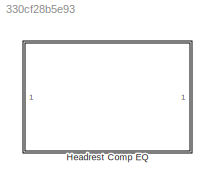
MODEL slx_330cf28b5e93
KIND library
CONFIG AbsTol = auto
CONFIG EnableMultiTasking = off
CONFIG FixedStep = auto
CONFIG MaxStep = auto
CONFIG MinStep = auto
CONFIG RelTol = 1e-3
CONFIG SampleTimeConstraint = Unconstrained
CONFIG SolverName = VariableStepAuto
CONFIG StartTime = 0.0
CONFIG StopTime = 10.0
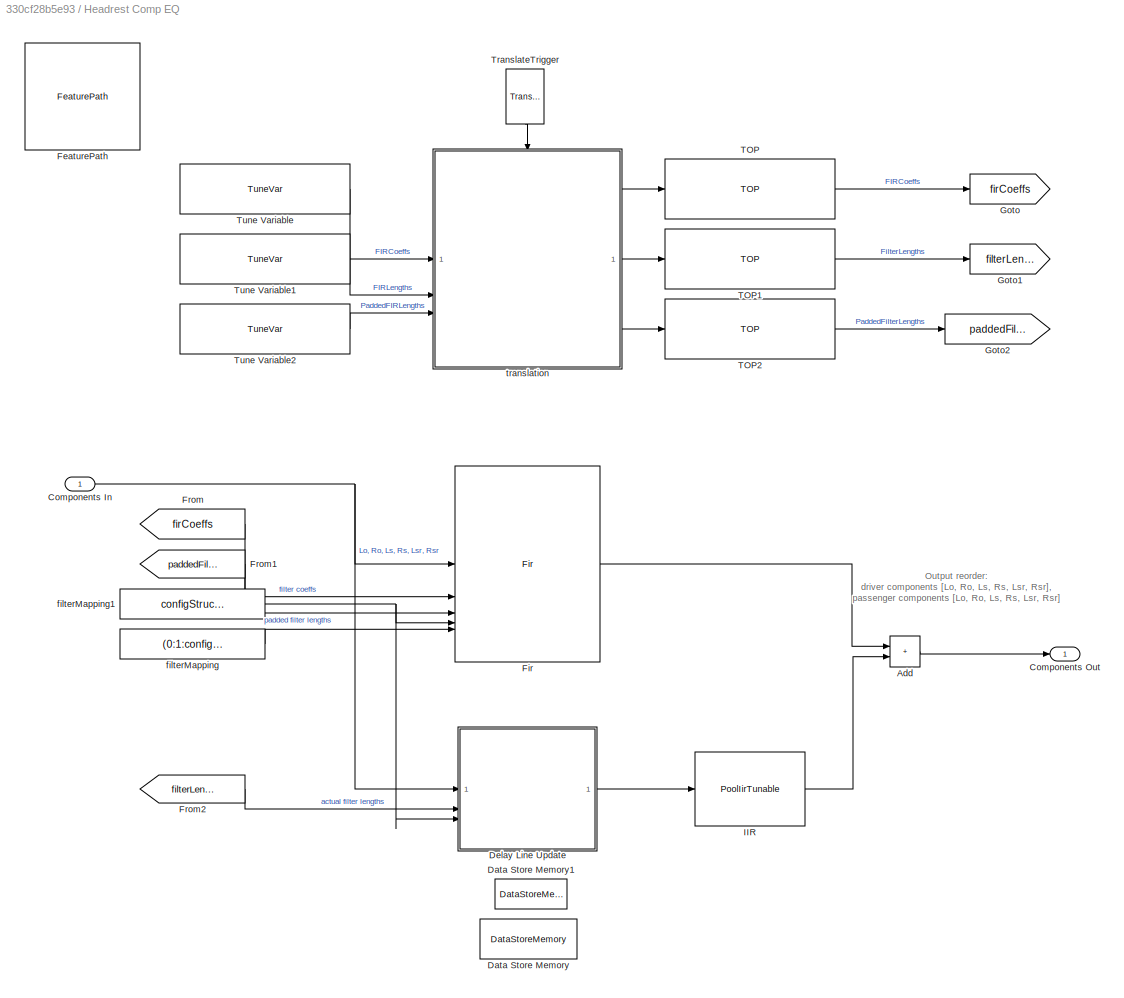
BLOCK [SubSystem] Headrest Comp EQ
BLOCK [Sum] Headrest Comp EQ/Add
  IconShape = rectangular
  Priority = 2
BLOCK [Inport] Headrest Comp EQ/Components In
BLOCK [Outport] Headrest Comp EQ/Components Out
  VectorParamsAs1DForOutWhenUnconnected = off
BLOCK [DataStoreMemory] Headrest Comp EQ/Data Store Memory
  DataStoreName = states
  InitialValue = zeros(fixedDelayLength, numInput)
  OutDataTypeStr = single
  ReadBeforeWriteMsg = warning
  ShowAdditionalParam = off
  SignalType = real
  WriteAfterReadMsg = warning
  WriteAfterWriteMsg = warning
BLOCK [DataStoreMemory] Headrest Comp EQ/Data Store Memory1
  DataStoreName = stateIndex
  OutDataTypeStr = int32
  ReadBeforeWriteMsg = warning
  ShowAdditionalParam = off
  SignalType = real
  WriteAfterReadMsg = warning
  WriteAfterWriteMsg = warning
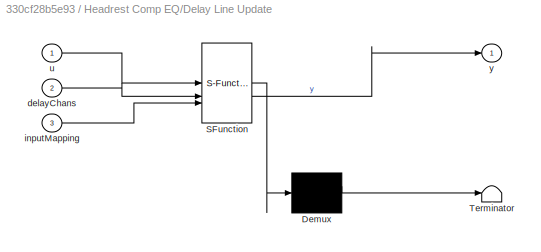
BLOCK [SubSystem] Headrest Comp EQ/Delay Line Update
  ErrorFcn = Stateflow.Translate.translate
  PermitHierarchicalResolution = ExplicitOnly
  SFBlockType = MATLAB Function
  TreatAsAtomicUnit = on
BLOCK [Demux] Headrest Comp EQ/Delay Line Update/ Demux 
  Outputs = 1
BLOCK [S-Function] Headrest Comp EQ/Delay Line Update/ SFunction 
  EnableBusSupport = off
  FunctionName = sf_sfun
  Parameters = fixedDelayLength
  PortCounts = [3 2]
  SFcnIsStateOwnerBlock = off
  SFunctionDeploymentMode = off
  Tag = Stateflow S-Function 2
BLOCK [Terminator] Headrest Comp EQ/Delay Line Update/ Terminator 
BLOCK [Inport] Headrest Comp EQ/Delay Line Update/delayChans
  Port = 2
BLOCK [Inport] Headrest Comp EQ/Delay Line Update/inputMapping
  Port = 3
BLOCK [Inport] Headrest Comp EQ/Delay Line Update/u
BLOCK [Outport] Headrest Comp EQ/Delay Line Update/y
  VectorParamsAs1DForOutWhenUnconnected = off
BLOCK [Reference] Headrest Comp EQ/FeaturePath  REF=FeaturePath/FeaturePath
  SourceBlock = FeaturePath/FeaturePath
  SourceProductName = Bose Talaria
  SourceType = Talaria Feature Path
BLOCK [Reference] Headrest Comp EQ/Fir  REF=FirGeneric/Fir
  SourceBlock = FirGeneric/Fir
  SourceProductName = Bose Blocklib
  SourceType = Blocklib Fir
BLOCK [From] Headrest Comp EQ/From
  GotoTag = firCoeffs
BLOCK [From] Headrest Comp EQ/From1
  GotoTag = paddedFilterLengths
BLOCK [From] Headrest Comp EQ/From2
  GotoTag = filterLengths
BLOCK [Goto] Headrest Comp EQ/Goto
  GotoTag = firCoeffs
BLOCK [Goto] Headrest Comp EQ/Goto1
  GotoTag = filterLengths
BLOCK [Goto] Headrest Comp EQ/Goto2
  GotoTag = paddedFilterLengths
BLOCK [Reference] Headrest Comp EQ/IIR  REF=PoolIir/PoolIirTunable
  SourceBlock = PoolIir/PoolIirTunable
  SourceType = Bose Pool IIR Tunable
BLOCK [Reference] Headrest Comp EQ/TOP  REF=TOP/TOP
  SourceBlock = TOP/TOP
  SourceProductName = Bose Talaria
  SourceType = Talaria Target Overlay Parameter
BLOCK [Reference] Headrest Comp EQ/TOP1  REF=TOP/TOP
  SourceBlock = TOP/TOP
  SourceProductName = Bose Talaria
  SourceType = Talaria Target Overlay Parameter
BLOCK [Reference] Headrest Comp EQ/TOP2  REF=TOP/TOP
  SourceBlock = TOP/TOP
  SourceProductName = Bose Talaria
  SourceType = Talaria Target Overlay Parameter
BLOCK [Reference] Headrest Comp EQ/TranslateTrigger  REF=TuneVar/TranslateTrigger
  NameLocation = left
  SourceBlock = TuneVar/TranslateTrigger
  SourceProductName = Bose Talaria
  SourceType = Talaria Translate Trigger
BLOCK [Reference] Headrest Comp EQ/Tune Variable  REF=TuneVar/TuneVar
  SourceBlock = TuneVar/TuneVar
  SourceProductName = Bose Talaria
  SourceType = Talaria Tune Variable
BLOCK [Reference] Headrest Comp EQ/Tune Variable1  REF=TuneVar/TuneVar
  SourceBlock = TuneVar/TuneVar
  SourceProductName = Bose Talaria
  SourceType = Talaria Tune Variable
BLOCK [Reference] Headrest Comp EQ/Tune Variable2  REF=TuneVar/TuneVar
  SourceBlock = TuneVar/TuneVar
  SourceProductName = Bose Talaria
  SourceType = Talaria Tune Variable
BLOCK [Constant] Headrest Comp EQ/filterMapping
  OutDataTypeStr = uint32
  Value = (0:1:configStruct.numEQlink-1)'
  VectorParams1D = off
BLOCK [Constant] Headrest Comp EQ/filterMapping1
  OutDataTypeStr = uint32
  Value = configStruct.inputMapping
  VectorParams1D = off
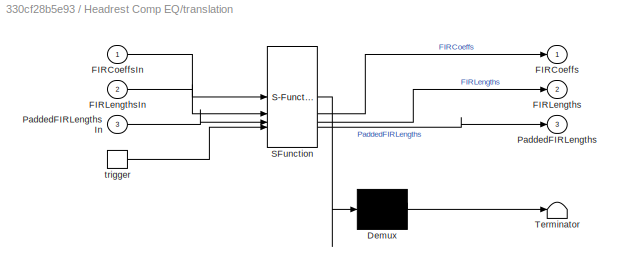
BLOCK [SubSystem] Headrest Comp EQ/translation
  ErrorFcn = Stateflow.Translate.translate
  PermitHierarchicalResolution = ExplicitOnly
  SFBlockType = MATLAB Function
  TreatAsAtomicUnit = on
BLOCK [Demux] Headrest Comp EQ/translation/ Demux 
  Outputs = 1
BLOCK [S-Function] Headrest Comp EQ/translation/ SFunction 
  EnableBusSupport = off
  FunctionName = sf_sfun
  PortCounts = [4 4]
  SFcnIsStateOwnerBlock = off
  SFunctionDeploymentMode = off
  Tag = Stateflow S-Function 8
BLOCK [Terminator] Headrest Comp EQ/translation/ Terminator 
BLOCK [Outport] Headrest Comp EQ/translation/FIRCoeffs
  VectorParamsAs1DForOutWhenUnconnected = off
BLOCK [Inport] Headrest Comp EQ/translation/FIRCoeffsIn
BLOCK [Outport] Headrest Comp EQ/translation/FIRLengths
  Port = 2
  VectorParamsAs1DForOutWhenUnconnected = off
BLOCK [Inport] Headrest Comp EQ/translation/FIRLengthsIn
  Port = 2
BLOCK [Outport] Headrest Comp EQ/translation/PaddedFIRLengths
  Port = 3
  VectorParamsAs1DForOutWhenUnconnected = off
BLOCK [Inport] Headrest Comp EQ/translation/PaddedFIRLengthsIn
  Port = 3
BLOCK [TriggerPort] Headrest Comp EQ/translation/trigger
  ShowOutputPort = on
  StatesWhenEnabling = held
  TriggerType = function-call
  VariantControl = Variant
ANNOTATION Headrest Comp EQ: Output reorder: driver components [Lo, Ro, Ls, Rs, Lsr, Rsr], passenger components [Lo, Ro, Ls, Rs, Lsr, Rsr]
CHART Headrest Comp EQ/Delay Line Update states=1 transitions=1
  STATE_LABEL 'eML_blk_kernel()'
  STATE_LABEL "SCRIPT:\nfunction y = delayLineUpdate(u, delayChans, inputMapping, fixedDelayLength)\n\n% Note: This block only reads 'states' to get the delayed samples. A\n% separate function is responsible for writing to 'states' to update the \n% delay line Data Store Memory. Thus it is important to ensure all DSM  \n% write happens before DSM read.\n%\n% This is different from pooldelay, as the delay for ALL channel...<+1059ch>"
CHART Headrest Comp EQ/translation states=1 transitions=1
  STATE_LABEL 'eML_blk_kernel()'
  STATE_LABEL 'SCRIPT:\nfunction [FIRCoeffs, FIRLengths, PaddedFIRLengths] = fcn(FIRCoeffsIn, FIRLengthsIn, PaddedFIRLengthsIn)\n\nFIRCoeffs = FIRCoeffsIn.Value;\nFIRLengths = FIRLengthsIn.Value;\nPaddedFIRLengths = PaddedFIRLengthsIn.Value;'
CHART  states=0 transitions=0
CHART  states=0 transitions=0
